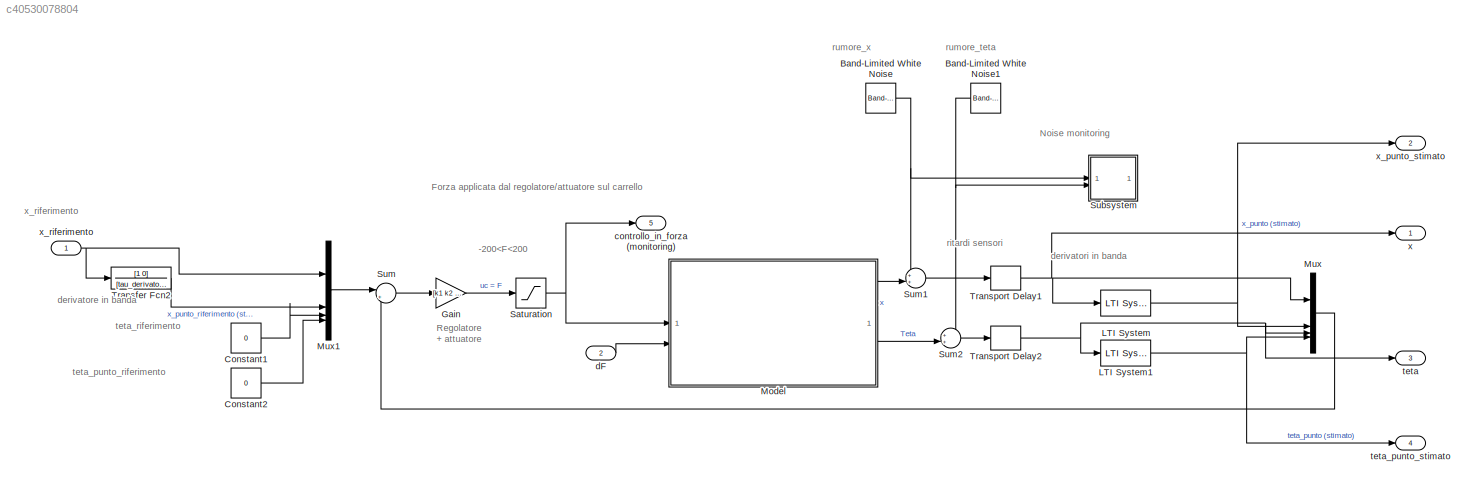
MODEL slx_c40530078804
KIND model
CONFIG AbsTol = auto
CONFIG EnableMultiTasking = off
CONFIG FixedStep = auto
CONFIG MaxStep = auto
CONFIG MinStep = auto
CONFIG RelTol = 1e-3
CONFIG SampleTimeConstraint = Unconstrained
CONFIG SolverName = VariableStepAuto
CONFIG StartTime = 0.0
CONFIG StopTime = 20
BLOCK [Reference] Band-Limited White Noise  REF=simulink/Sources/Band-Limited
White Noise
  SourceBlock = simulink/Sources/Band-Limited\nWhite Noise
  SourceType = Band-Limited White Noise.
BLOCK [Reference] Band-Limited White Noise1  REF=simulink/Sources/Band-Limited
White Noise
  SourceBlock = simulink/Sources/Band-Limited\nWhite Noise
  SourceType = Band-Limited White Noise.
BLOCK [Constant] Constant1
  Value = 0
BLOCK [Constant] Constant2
  Value = 0
BLOCK [Gain] Gain
  Gain = [k1 k2 k3 k4]
  Multiplication = Matrix(K*u)
BLOCK [Reference] LTI System  REF=cstblocks/LTI System
  SourceBlock = cstblocks/LTI System
  SourceType = LTI Block
BLOCK [Reference] LTI System1  REF=cstblocks/LTI System
  SourceBlock = cstblocks/LTI System
  SourceType = LTI Block
BLOCK [ModelReference] Model
  ModelNameDialog = sistema_pendolo_carrello.slx
  ModelReferenceVersion = 9.30
BLOCK [Mux] Mux
  DisplayOption = bar
BLOCK [Mux] Mux1
  DisplayOption = bar
BLOCK [Saturate] Saturation
  LowerLimit = limite_inf_att
  UpperLimit = limite_sup_att
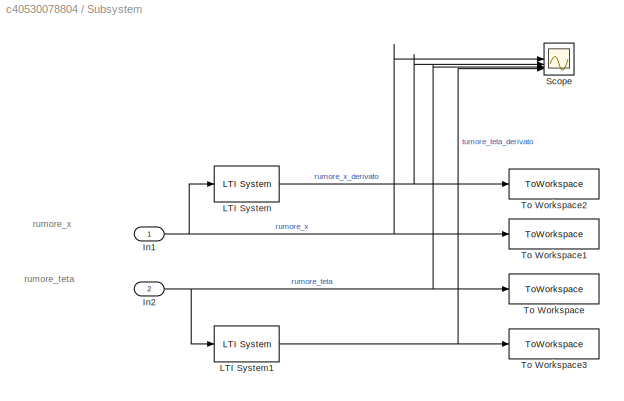
BLOCK [SubSystem] Subsystem
BLOCK [Inport] Subsystem/In1
BLOCK [Inport] Subsystem/In2
  Port = 2
BLOCK [Reference] Subsystem/LTI System  REF=cstblocks/LTI System
  SourceBlock = cstblocks/LTI System
  SourceType = LTI Block
BLOCK [Reference] Subsystem/LTI System1  REF=cstblocks/LTI System
  SourceBlock = cstblocks/LTI System
  SourceType = LTI Block
BLOCK [Scope] Subsystem/Scope
  ActiveDisplayString = 4
  ActiveDisplayYMaximum = 0.022610164693865255
  ActiveDisplayYMinimum = -0.020910040248455251
  DataLoggingVariableName = ScopeData1
  Floating = off
  GraphicalSettings = {"Style":{"BackgroundColor":[0.12941176470588237,0.12941176470588237,0.12941176470588237],"AxesColor":[0.07058823529411765,0.07058823529411765,0.07058823529411765],"LabelsColor":[0.8509803921568627,0.8509803921568627,0.8509803921568627],"PreserveColors":false,"Visible":[true,true,true,true],"LineStyle":["-","-","-","-"],"LineWidth":[1.5,1.5,1.5,1.5],"BarWidth":[0.9,0.9,0.9,0.9],"LineColor":["auto"...<+3271ch>
  LayoutDimensionsString = [2, 2]
  MultipleDisplayCache = [{"MaxYLimMag":0.0041812102366848292,"MaxYLimReal":0.0041812102366848292,"MinYLimMag":0,"MinYLimReal":-0.0039619736743547835,"PlotAsMagnitudePhase":false,"ShowGrid":true,"ShowLegend":true,"Title":"%<SignalLabel>","YLabel":""},{"MaxYLimMag":0.21549614806303338,"MaxYLimReal":0.21549614806303338,"MinYLimMag":0,"MinYLimReal":-0.19929236210330251,"PlotAsMagnitudePhase":false,"ShowGrid":true,"ShowLegend...<+495ch>
  NumInputPorts = 4
  ScopeFrameLocation = window
  ShowLegend = on
  WasSavedAsWebScope = on
  WindowPosition = [67.000000,38.000000,1300.000000,699.000000,]
BLOCK [ToWorkspace] Subsystem/To Workspace
  FixptAsFi = on
  MaxDataPoints = inf
  SampleTime = -1
  SaveFormat = Timeseries
  VariableName = rumore_teta
BLOCK [ToWorkspace] Subsystem/To Workspace1
  FixptAsFi = on
  MaxDataPoints = inf
  SampleTime = -1
  SaveFormat = Timeseries
  VariableName = rumore_x
BLOCK [ToWorkspace] Subsystem/To Workspace2
  FixptAsFi = on
  MaxDataPoints = inf
  SampleTime = -1
  SaveFormat = Timeseries
  VariableName = rumore_x_derivato
BLOCK [ToWorkspace] Subsystem/To Workspace3
  FixptAsFi = on
  MaxDataPoints = inf
  SampleTime = -1
  SaveFormat = Timeseries
  VariableName = rumore_teta_derivato
BLOCK [Sum] Sum
  Inputs = |+-
BLOCK [Sum] Sum1
  Inputs = ++|
BLOCK [Sum] Sum2
  Inputs = ++|
BLOCK [TransferFcn] Transfer Fcn2
  Denominator = [tau_derivatore 1]
  Numerator = [1 0]
BLOCK [TransportDelay] Transport Delay1
  DelayTime = ritardo_misura
BLOCK [TransportDelay] Transport Delay2
  DelayTime = ritardo_misura
  InitialOutput = teta_zero
BLOCK [Outport] controllo_in_forza (monitoring)
  Port = 5
BLOCK [Inport] dF
  Port = 2
BLOCK [Outport] teta
  Port = 3
BLOCK [Outport] teta_punto_stimato
  Port = 4
BLOCK [Outport] x
BLOCK [Outport] x_punto_stimato
  Port = 2
BLOCK [Inport] x_riferimento
ANNOTATION (root): -200<F<200
ANNOTATION (root): Forza applicata dal regolatore/attuatore sul carrello
ANNOTATION (root): Noise monitoring
ANNOTATION (root): Regolatore + attuatore
ANNOTATION (root): derivatore in banda
ANNOTATION (root): derivatori in banda
ANNOTATION (root): ritardi sensori
ANNOTATION (root): rumore_teta
ANNOTATION (root): rumore_x
ANNOTATION (root): teta_punto_riferimento
ANNOTATION (root): teta_riferimento
ANNOTATION (root): x_riferimento
ANNOTATION Subsystem: rumore_teta
ANNOTATION Subsystem: rumore_x
NET Band-Limited White Noise1:1 -> Subsystem:2, Sum2:1
NET Band-Limited White Noise:1 -> Subsystem:1, Sum1:1
LINE Constant1:1 -> Mux1:3
LINE Constant2:1 -> Mux1:4
LINE Gain:1 -> Saturation:1
NET LTI System1:1 -> Mux:4, teta_punto_stimato:1
NET LTI System:1 -> Mux:2, x_punto_stimato:1
LINE Model:1 -> Sum1:2
LINE Model:3 -> Sum2:2
LINE Mux1:1 -> Sum:1
LINE Mux:1 -> Sum:2
NET Saturation:1 -> Model:1, controllo_in_forza (monitoring):1
NET Subsystem/In1:1 -> Subsystem/LTI System:1, Subsystem/Scope:1, Subsystem/To Workspace1:1
NET Subsystem/In2:1 -> Subsystem/LTI System1:1, Subsystem/Scope:3, Subsystem/To Workspace:1
NET Subsystem/LTI System1:1 -> Subsystem/Scope:4, Subsystem/To Workspace3:1
NET Subsystem/LTI System:1 -> Subsystem/Scope:2, Subsystem/To Workspace2:1
LINE Sum1:1 -> Transport Delay1:1
LINE Sum2:1 -> Transport Delay2:1
LINE Sum:1 -> Gain:1
LINE Transfer Fcn2:1 -> Mux1:2
NET Transport Delay1:1 -> LTI System:1, Mux:1, x:1
NET Transport Delay2:1 -> LTI System1:1, Mux:3, teta:1
LINE dF:1 -> Model:2
NET x_riferimento:1 -> Mux1:1, Transfer Fcn2:1
note: NET lines group one-source signal fan-out (src -> all destinations, sorted); 1:1 wires keep LINE
